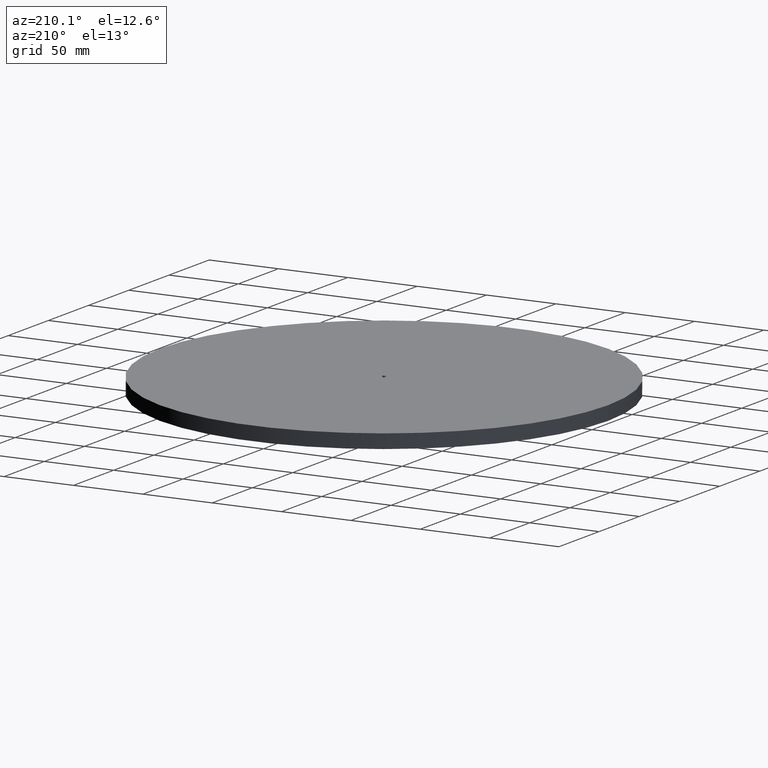
[diagram: clean part render]
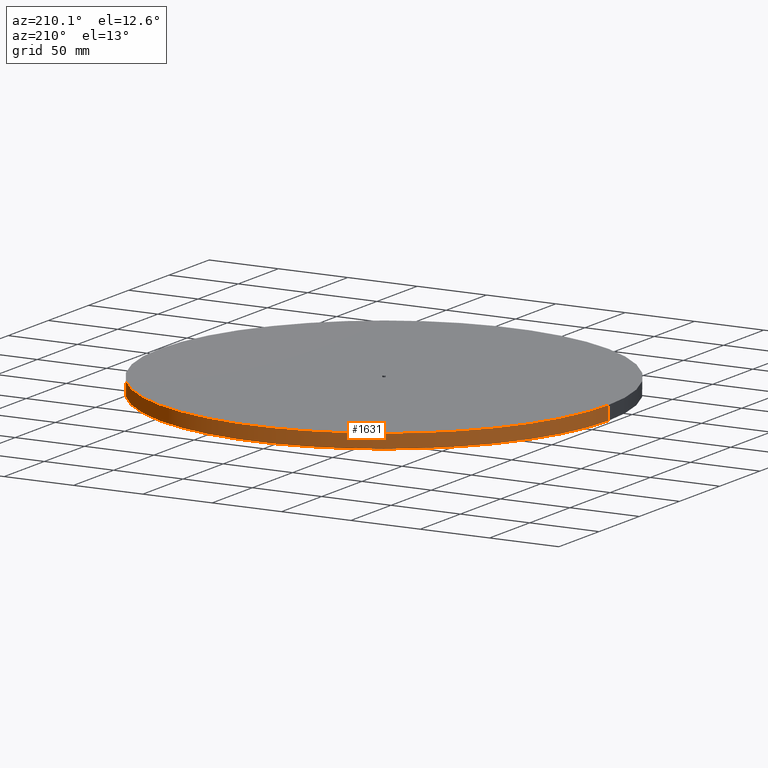
[diagram: same view with one face highlighted and labeled with its STEP entity id]
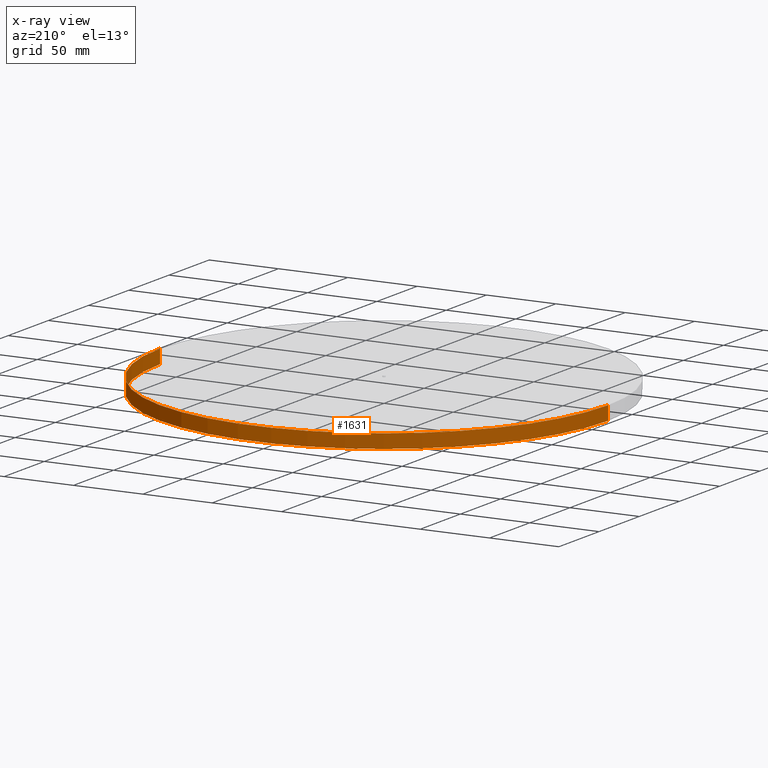
[diagram: x-ray of the same camera — body ghosted, the highlighted face saturated]
A machine part, auxiliary view. The second image highlights one B-rep face of the part: STEP entity #1631.
The next image is the same camera in x-ray: the body ghosted, the highlighted face saturated — about 0% of this face is hidden behind the body in this view.
In plain terms, the highlighted cylindrical surface (partial cylindrical patch) has radius 161.5 mm, axis along (-0, -0, -1).
Its self-contained STEP definition (entity closure, byte-faithful):
#31 = EDGE_CURVE ( 'NONE', #102, #1234, #1639, .T. ) ;
#102 = VERTEX_POINT ( 'NONE', #1175 ) ;
#160 = CARTESIAN_POINT ( 'NONE',  ( 0.000000000000000000, 0.000000000000000000, 10.00000000000000000 ) ) ;
#173 = FACE_OUTER_BOUND ( 'NONE', #2103, .T. ) ;
#218 = DIRECTION ( 'NONE',  ( -0.000000000000000000, -0.000000000000000000, -1.000000000000000000 ) ) ;
#259 = LINE ( 'NONE', #1025, #323 ) ;
#267 = CARTESIAN_POINT ( 'NONE',  ( 161.5000000000000000, 1.977804580622975483E-14, 0.000000000000000000 ) ) ;
#323 = VECTOR ( 'NONE', #218, 1000.000000000000000 ) ;
#356 = DIRECTION ( 'NONE',  ( 1.000000000000000000, 0.000000000000000000, 0.000000000000000000 ) ) ;
#558 = CARTESIAN_POINT ( 'NONE',  ( 0.000000000000000000, 0.000000000000000000, 10.00000000000000000 ) ) ;
#650 = VECTOR ( 'NONE', #733, 1000.000000000000000 ) ;
#683 = EDGE_CURVE ( 'NONE', #1909, #959, #2079, .T. ) ;
#695 = DIRECTION ( 'NONE',  ( -0.000000000000000000, -0.000000000000000000, -1.000000000000000000 ) ) ;
#733 = DIRECTION ( 'NONE',  ( -0.000000000000000000, -0.000000000000000000, -1.000000000000000000 ) ) ;
#785 = ORIENTED_EDGE ( 'NONE', *, *, #1366, .F. ) ;
#929 = AXIS2_PLACEMENT_3D ( 'NONE', #160, #695, #2226 ) ;
#947 = ORIENTED_EDGE ( 'NONE', *, *, #31, .F. ) ;
#959 = VERTEX_POINT ( 'NONE', #2187 ) ;
#1025 = CARTESIAN_POINT ( 'NONE',  ( -161.5000000000000000, 0.000000000000000000, 10.00000000000000000 ) ) ;
#1173 = CARTESIAN_POINT ( 'NONE',  ( -161.5000000000000000, 0.000000000000000000, 10.00000000000000000 ) ) ;
#1175 = CARTESIAN_POINT ( 'NONE',  ( 161.5000000000000000, 1.977804580622975483E-14, 10.00000000000000000 ) ) ;
#1186 = DIRECTION ( 'NONE',  ( 1.000000000000000000, 0.000000000000000000, 0.000000000000000000 ) ) ;
#1234 = VERTEX_POINT ( 'NONE', #1173 ) ;
#1316 = AXIS2_PLACEMENT_3D ( 'NONE', #558, #1699, #356 ) ;
#1366 = EDGE_CURVE ( 'NONE', #1234, #959, #259, .T. ) ;
#1479 = LINE ( 'NONE', #2463, #650 ) ;
#1631 = ADVANCED_FACE ( 'NONE', ( #173 ), #2434, .T. ) ;
#1639 = CIRCLE ( 'NONE', #1316, 161.5000000000000000 ) ;
#1699 = DIRECTION ( 'NONE',  ( 0.000000000000000000, 0.000000000000000000, 1.000000000000000000 ) ) ;
#1909 = VERTEX_POINT ( 'NONE', #267 ) ;
#1990 = DIRECTION ( 'NONE',  ( 0.000000000000000000, 0.000000000000000000, 1.000000000000000000 ) ) ;
#2038 = AXIS2_PLACEMENT_3D ( 'NONE', #2171, #1990, #1186 ) ;
#2050 = ORIENTED_EDGE ( 'NONE', *, *, #2229, .T. ) ;
#2079 = CIRCLE ( 'NONE', #2038, 161.5000000000000000 ) ;
#2103 = EDGE_LOOP ( 'NONE', ( #947, #2050, #2455, #785 ) ) ;
#2171 = CARTESIAN_POINT ( 'NONE',  ( 0.000000000000000000, 0.000000000000000000, 0.000000000000000000 ) ) ;
#2187 = CARTESIAN_POINT ( 'NONE',  ( -161.5000000000000000, 0.000000000000000000, 0.000000000000000000 ) ) ;
#2226 = DIRECTION ( 'NONE',  ( -1.000000000000000000, 0.000000000000000000, 0.000000000000000000 ) ) ;
#2229 = EDGE_CURVE ( 'NONE', #102, #1909, #1479, .T. ) ;
#2434 = CYLINDRICAL_SURFACE ( 'NONE', #929, 161.5000000000000000 ) ;
#2455 = ORIENTED_EDGE ( 'NONE', *, *, #683, .T. ) ;
#2463 = CARTESIAN_POINT ( 'NONE',  ( 161.5000000000000000, 1.977804580622975483E-14, 10.00000000000000000 ) ) ;